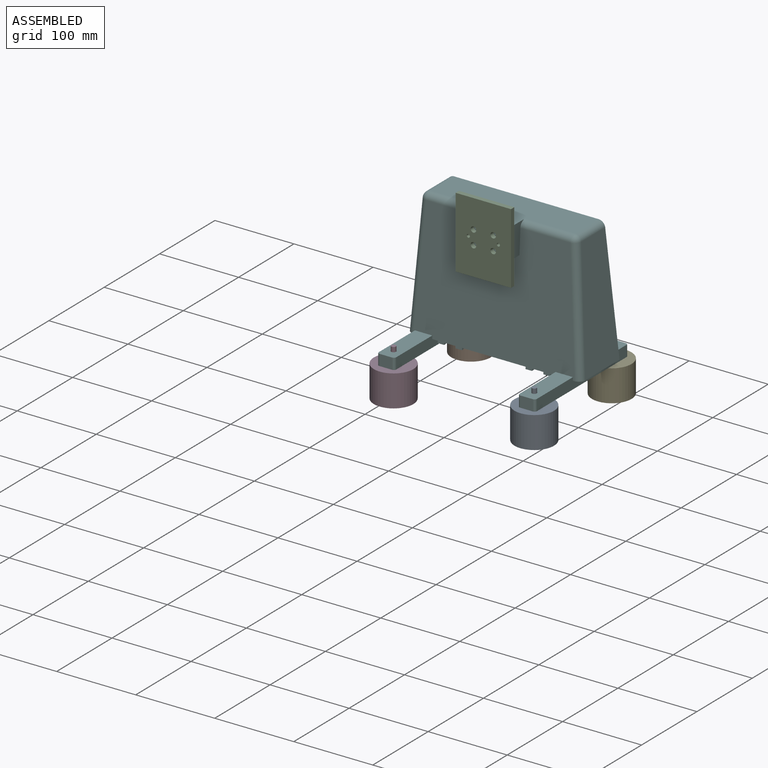
[diagram: assembled view]
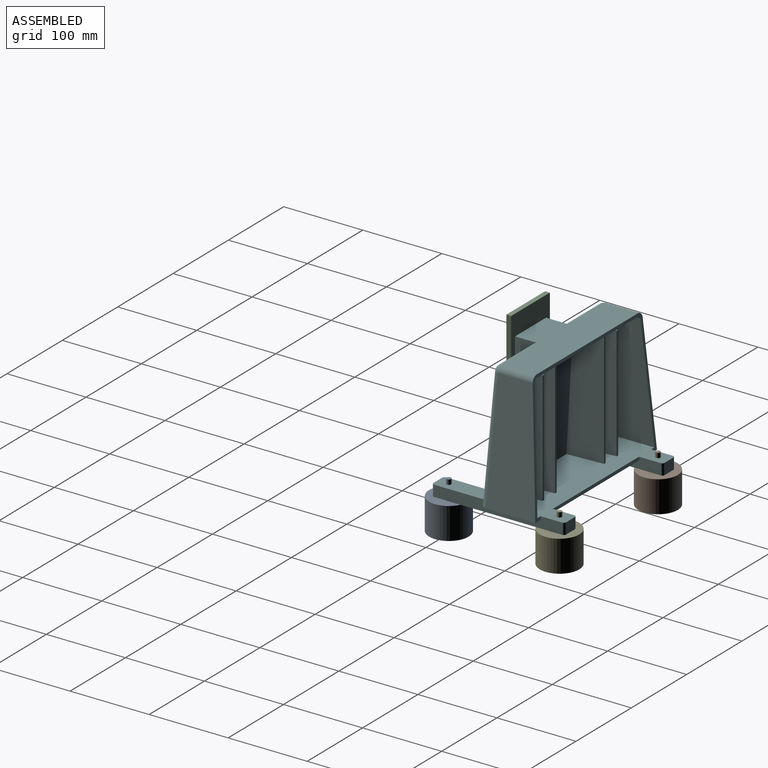
[diagram: assembled view, second angle]
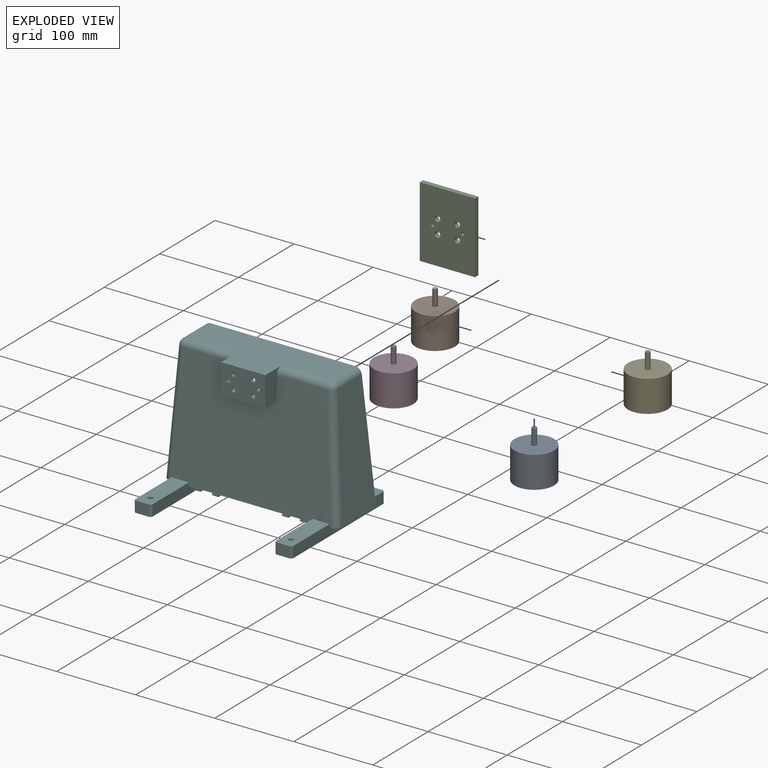
[diagram: exploded view]
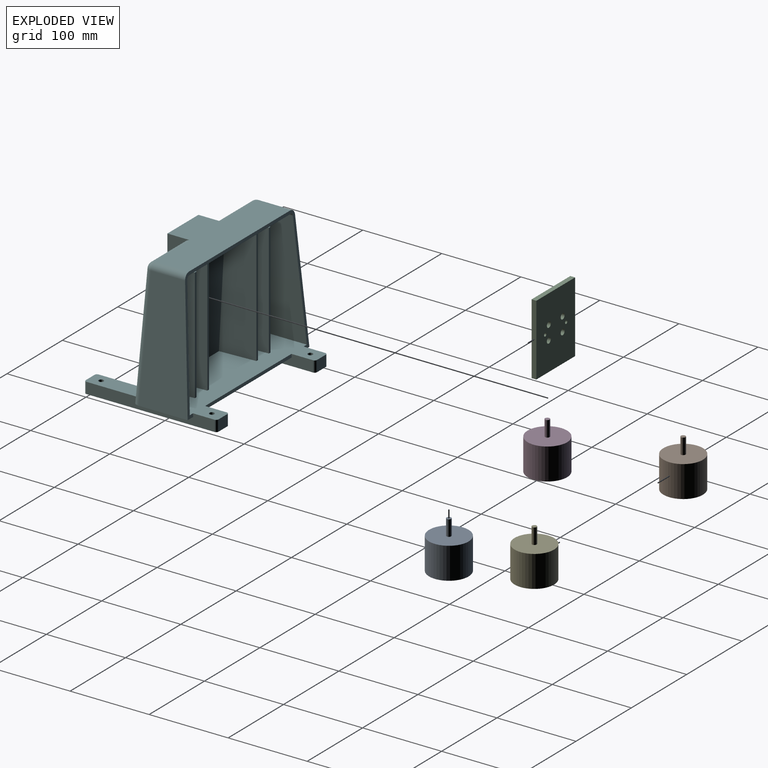
[diagram: exploded view, second angle]
ASSEMBLY  parts=6 mates=5
PART A: 7 faces, bbox 50x50x60 mm
  f0: plane 50x50mm, normal (0,0,1), area 1929.3mm2, adj f1,f6
  f1: cylinder r=25mm len=50mm, axis (0,0,-1), area 6283.2mm2, adj f0,f2
  f2: plane 50x50mm, normal (0,0,-1), area 1935.2mm2, adj f1,f3
  f3: cylinder r=3mm len=20mm, axis (0,0,1), area 377mm2, adj f2,f4
  f4: plane 6x6mm, normal (0,0,-1), area 28.3mm2, adj f3
  f5: cone r=0mm half-angle=59deg, axis (0,0,1), area 39.9mm2, adj f6
  f6: cylinder r=3.3mm len=12mm, axis (0,0,1), area 248.8mm2, adj f0,f5
PART B: same geometry as A
PART C: 12 faces, bbox 70x6x90 mm
  f0: plane 90x70mm, normal (0,-1,0), area 6120.9mm2, adj f2,f3,f4,f5,f6,f7,f8,f9
  f1: plane 90x70mm, normal (0,1,0), area 6120.9mm2, adj f2,f3,f4,f5,f6,f7,f8,f9
  f2: plane 70x6mm, normal (0,0,1), area 420mm2, adj f0,f1,f3,f8
  f3: plane 90x6mm, normal (-1,0,0), area 540mm2, adj f0,f1,f2,f4
  f4: plane 70x6mm, normal (0,0,-1), area 420mm2, adj f0,f1,f3,f8
  f5: cylinder r=3.5mm len=7mm, axis (0,1,0), area 131.9mm2, adj f0,f1
  f6: cylinder r=3.5mm len=7mm, axis (0,1,0), area 131.9mm2, adj f0,f1
  f7: cylinder r=3.5mm len=7mm, axis (0,1,0), area 131.9mm2, adj f0,f1
  f8: plane 90x6mm, normal (1,0,0), area 540mm2, adj f0,f1,f2,f4
  f9: cylinder r=3.5mm len=7mm, axis (0,1,0), area 131.9mm2, adj f0,f1
  f10: cylinder r=2mm len=6mm, axis (0,-1,0), area 75.4mm2, adj f0,f1
  f11: cylinder r=2mm len=6mm, axis (0,-1,0), area 75.4mm2, adj f0,f1
PART D: same geometry as A
PART E: same geometry as A
PART F: 113 faces, bbox 220.4x168.4x170.4 mm
  f0: plane 211.61x95.98mm, normal (0,0,1), area 14117.7mm2, adj f2,f6,f7,f13,f17,f32,f33,f36
  f1: plane 156x70mm, normal (0,0,-1), area 9795.9mm2, adj f13,f15,f45,f52,f94,f95,f96,f97
  f2: plane 148.21x81.63mm, normal (0,1,-0.05), area 10794.9mm2, adj f0,f8,f9,f34,f35,f39,f83,f100
  f3: plane 182.7x68.09mm, normal (0,0,-1), area 8750.6mm2, adj f4,f5,f8,f9,f17,f34,f37,f39
  f4: cylinder r=4mm len=43.76mm, axis (-1,0,0), area 265.2mm2, adj f3,f6,f38,f101
  f5: plane 48x29.1mm, normal (0,1,0), area 1239.9mm2, adj f3,f8,f34,f76,f77,f78,f79,f80
  f6: plane 148.21x53.92mm, normal (0,1,-0.05), area 6123.5mm2, adj f0,f4,f36,f101,f103,f104,f105
  f7: plane 148.21x53.92mm, normal (0,1,-0.05), area 6123.5mm2, adj f0,f40,f43,f82,f90,f91,f92
  f8: plane 30x24.98mm, normal (-1,0,0), area 159.1mm2, adj f2,f3,f5,f9,f35,f86,f87
  f9: cylinder r=4mm len=17.02mm, axis (-1,0,0), area 102.8mm2, adj f2,f3,f8,f83
  f10: plane 56x38mm, normal (0,-1,0), area 2017.9mm2, adj f19,f21,f22,f23,f76,f77,f78,f79
  f11: plane 168x22mm, normal (0,0,-1), area 1792.3mm2, adj f45,f46,f47,f48,f60,f61,f62,f63
  f12: plane 168x22mm, normal (0,0,-1), area 1792.3mm2, adj f50,f51,f52,f53,f54,f55,f56,f57
  f13: plane 156x4mm, normal (0,1,0.07), area 625.5mm2, adj f0,f1,f45,f52
  f14: plane 70.4x10.4mm, normal (0,0,-1), area 686.3mm2, adj f15,f17,f18,f24,f48
  f15: plane 204.02x155.05mm, normal (0,-1,0.05), area 27717.1mm2, adj f1,f14,f20,f21,f22,f23,f24,f27
  f16: plane 152.56x62.02mm, normal (1,0,0.07), area 8057.4mm2, adj f17,f20,f29,f31
  f17: plane 220.22x160.22mm, normal (0,1,0.07), area 2077mm2, adj f0,f3,f14,f16,f18,f19,f20,f25
  f18: plane 152.56x62.02mm, normal (-1,0,0.07), area 8057.4mm2, adj f14,f17,f24,f25
  f19: plane 182.7x71.81mm, normal (0,0,1), area 9448.8mm2, adj f10,f17,f21,f23,f25,f27,f28,f29
  f20: plane 70.4x10.4mm, normal (0,0,-1), area 686.3mm2, adj f15,f16,f17,f31,f51
  f21: plane 38x28.98mm, normal (-1,0,0), area 786.9mm2, adj f10,f15,f19,f22,f27
  f22: plane 56x19.39mm, normal (0,0,-1), area 1086mm2, adj f10,f15,f21,f23
  f23: plane 38x28.98mm, normal (1,0,0), area 786.9mm2, adj f10,f15,f19,f22,f28
  f24: cylinder r=8mm len=152.84mm, axis (-0.07,-0.05,-1), area 1919.1mm2, adj f14,f15,f18,f26
  f25: cylinder r=8mm len=43.36mm, axis (0,-1,0), area 517.5mm2, adj f17,f18,f19,f26
  f26: sphere r=8mm, area 94.4mm2, adj f24,f25,f27
  f27: cylinder r=8mm len=63.35mm, axis (-1,0,0), area 769.6mm2, adj f15,f19,f21,f26
  f28: cylinder r=8mm len=63.35mm, axis (-1,0,0), area 769.6mm2, adj f15,f19,f23,f30
  f29: cylinder r=8mm len=43.36mm, axis (0,-1,0), area 517.5mm2, adj f16,f17,f19,f30
  f30: sphere r=8mm, area 94.4mm2, adj f28,f29,f31
  f31: cylinder r=8mm len=152.84mm, axis (0.07,-0.05,-1), area 1919.1mm2, adj f15,f16,f20,f30
  f32: plane 148.28x61.51mm, normal (-1,0,-0.07), area 7795.4mm2, adj f0,f17,f41,f43
  f33: plane 148.28x61.51mm, normal (1,0,-0.07), area 7795.4mm2, adj f0,f17,f36,f37
  f34: plane 30x24.98mm, normal (1,0,0), area 159.1mm2, adj f2,f3,f5,f35,f39,f85,f89
  f35: plane 48x2.51mm, normal (0,0,1), area 120.5mm2, adj f2,f8,f34,f88
  f36: cylinder r=4mm len=148.42mm, axis (-0.07,-0.05,-1), area 932.9mm2, adj f0,f6,f33,f38
  f37: cylinder r=4mm len=43.37mm, axis (0,-1,0), area 259.6mm2, adj f3,f17,f33,f38
  f38: sphere r=4mm, area 23.6mm2, adj f4,f36,f37
  f39: cylinder r=4mm len=17.02mm, axis (-1,0,0), area 102.8mm2, adj f2,f3,f34,f100
  f40: cylinder r=4mm len=43.76mm, axis (-1,0,0), area 265.2mm2, adj f3,f7,f42,f82
  f41: cylinder r=4mm len=43.37mm, axis (0,-1,0), area 259.6mm2, adj f3,f17,f32,f42
  f42: sphere r=4mm, area 23.6mm2, adj f40,f41,f43
  f43: cylinder r=4mm len=148.42mm, axis (0.07,-0.05,-1), area 932.9mm2, adj f0,f7,f32,f42
  f44: plane 68.21x22mm, normal (0,0,1), area 1466.6mm2, adj f15,f45,f47,f48,f64,f74,f75
  f45: plane 162x14mm, normal (1,0,0), area 1989mm2, adj f0,f1,f11,f13,f15,f44,f72,f74
  f46: plane 16x14mm, normal (0,1,0), area 224mm2, adj f0,f11,f72,f73
  f47: plane 16x14mm, normal (0,-1,0), area 224mm2, adj f11,f44,f74,f75
  f48: plane 162x14mm, normal (-1,0,0), area 1989mm2, adj f0,f11,f14,f15,f17,f44,f73,f75
  f49: plane 68.21x22mm, normal (0,0,1), area 1466.6mm2, adj f15,f50,f51,f52,f67,f68,f69
  f50: plane 16x14mm, normal (0,-1,0), area 224mm2, adj f12,f49,f68,f69
  f51: plane 162x14mm, normal (1,0,0), area 1989mm2, adj f0,f12,f15,f17,f20,f49,f68,f71
  f52: plane 162x14mm, normal (-1,0,0), area 1989mm2, adj f0,f1,f12,f13,f15,f49,f69,f70
  f53: plane 16x14mm, normal (0,1,0), area 224mm2, adj f0,f12,f70,f71
  f54: plane 12x9mm, normal (0,-1,0), area 108mm2, adj f12,f55,f56,f58
  f55: plane 158x9mm, normal (1,0,0), area 1422mm2, adj f12,f54,f57,f58
  f56: plane 158x9mm, normal (-1,0,0), area 1422mm2, adj f12,f54,f57,f58
  f57: plane 12x9mm, normal (0,1,0), area 108mm2, adj f12,f55,f56,f58
  f58: plane 158x12mm, normal (0,0,-1), area 1835.6mm2, adj f54,f55,f56,f57,f66,f67
  f59: plane 158x12mm, normal (0,0,-1), area 1835.6mm2, adj f60,f61,f62,f63,f64,f65
  f60: plane 158x9mm, normal (-1,0,0), area 1422mm2, adj f11,f59,f61,f62
  f61: plane 12x9mm, normal (0,-1,0), area 108mm2, adj f11,f59,f60,f63
  f62: plane 12x9mm, normal (0,1,0), area 108mm2, adj f11,f59,f60,f63
  f63: plane 158x9mm, normal (1,0,0), area 1422mm2, adj f11,f59,f61,f62
  f64: cylinder r=3.1mm len=6.2mm, axis (0,0,1), area 97.4mm2, adj f44,f59
  f65: cylinder r=3.1mm len=6.2mm, axis (0,0,1), area 97.4mm2, adj f0,f59
  f66: cylinder r=3.1mm len=6.2mm, axis (0,0,1), area 97.4mm2, adj f0,f58
  f67: cylinder r=3.1mm len=6.2mm, axis (0,0,1), area 97.4mm2, adj f49,f58
  f68: cylinder r=3mm len=14mm, axis (0,0,1), area 66mm2, adj f12,f49,f50,f51
  f69: cylinder r=3mm len=14mm, axis (0,0,-1), area 66mm2, adj f12,f49,f50,f52
  f70: cylinder r=3mm len=14mm, axis (0,0,1), area 66mm2, adj f0,f12,f52,f53
  f71: cylinder r=3mm len=14mm, axis (0,0,-1), area 66mm2, adj f0,f12,f51,f53
  f72: cylinder r=3mm len=14mm, axis (0,0,1), area 66mm2, adj f0,f11,f45,f46
  f73: cylinder r=3mm len=14mm, axis (0,0,-1), area 66mm2, adj f0,f11,f46,f48
  f74: cylinder r=3mm len=14mm, axis (0,0,-1), area 66mm2, adj f11,f44,f45,f47
  f75: cylinder r=3mm len=14mm, axis (0,0,1), area 66mm2, adj f11,f44,f47,f48
  f76: cylinder r=2.6mm len=5.2mm, axis (0,-1,0), area 65.3mm2, adj f5,f10
  f77: cylinder r=2mm len=4mm, axis (0,-1,0), area 50.3mm2, adj f5,f10
  f78: cylinder r=2.6mm len=5.2mm, axis (0,-1,0), area 65.3mm2, adj f5,f10
  f79: cylinder r=2.6mm len=5.2mm, axis (0,-1,0), area 65.3mm2, adj f5,f10
  f80: cylinder r=2.6mm len=5.2mm, axis (0,-1,0), area 65.3mm2, adj f5,f10
  f81: cylinder r=2mm len=4mm, axis (0,-1,0), area 50.3mm2, adj f5,f10
  f82: plane 152.08x45.87mm, normal (1,0.05,0), area 6359.6mm2, adj f0,f3,f7,f40,f84
  f83: plane 152.08x45.87mm, normal (-1,0.05,0), area 6359.6mm2, adj f0,f2,f3,f9,f84
  f84: plane 152x3mm, normal (0,1,0), area 456mm2, adj f0,f3,f82,f83
  f85: plane 17.1x0.9mm, normal (0,0.05,1), area 7.7mm2, adj f5,f34,f89
  f86: plane 27.11x17.1mm, normal (-1,0.05,0), area 448.8mm2, adj f5,f8,f87,f88
  f87: plane 17.1x0.9mm, normal (0,0.05,1), area 7.7mm2, adj f5,f8,f86
  f88: plane 48x17.1mm, normal (0,0.05,1), area 806.5mm2, adj f5,f35,f86,f89
  f89: plane 27.11x17.1mm, normal (1,0.05,0), area 448.8mm2, adj f5,f34,f85,f88
  f90: plane 145.62x45.79mm, normal (1,0.05,0), area 6081.8mm2, adj f0,f7,f92,f93
  f91: plane 145.62x45.79mm, normal (-1,0.05,0), area 6081.8mm2, adj f0,f7,f92,f93
  f92: plane 38.15x7mm, normal (0,0.05,1), area 191mm2, adj f7,f90,f91,f93
  f93: plane 143.62x3mm, normal (0,1,0), area 430.9mm2, adj f0,f90,f91,f92
  f94: plane 50.14x8.26mm, normal (0,0.05,-1), area 282.5mm2, adj f1,f15,f95,f96
  f95: plane 50.14x2.63mm, normal (1,0.05,0), area 65.8mm2, adj f1,f15,f94
  f96: plane 50.14x2.63mm, normal (-1,0.05,0), area 65.8mm2, adj f1,f15,f94
  f97: plane 50.14x2.63mm, normal (-1,0.05,0), area 65.8mm2, adj f1,f15,f99
  f98: plane 50.14x2.63mm, normal (1,0.05,0), area 65.8mm2, adj f1,f15,f99
  f99: plane 50.14x8.26mm, normal (0,0.05,-1), area 282.5mm2, adj f1,f15,f97,f98
  f100: plane 152.08x45.87mm, normal (1,0.05,0), area 6359.6mm2, adj f0,f2,f3,f39,f102
  f101: plane 152.08x45.87mm, normal (-1,0.05,0), area 6359.6mm2, adj f0,f3,f4,f6,f102
  f102: plane 152x3mm, normal (0,1,0), area 456mm2, adj f0,f3,f100,f101
  f103: plane 38.15x7mm, normal (0,0.05,1), area 191mm2, adj f6,f104,f105,f106
  f104: plane 145.62x45.79mm, normal (1,0.05,0), area 6081.8mm2, adj f0,f6,f103,f106
  f105: plane 145.62x45.79mm, normal (-1,0.05,0), area 6081.8mm2, adj f0,f6,f103,f106
  f106: plane 143.62x3mm, normal (0,1,0), area 430.9mm2, adj f0,f103,f104,f105
  f107: plane 50.14x8.26mm, normal (0,0.05,-1), area 282.5mm2, adj f1,f15,f108,f109
  f108: plane 50.14x2.63mm, normal (1,0.05,0), area 65.8mm2, adj f1,f15,f107
  f109: plane 50.14x2.63mm, normal (-1,0.05,0), area 65.8mm2, adj f1,f15,f107
  f110: plane 50.14x2.63mm, normal (-1,0.05,0), area 65.8mm2, adj f1,f15,f112
  f111: plane 50.14x2.63mm, normal (1,0.05,0), area 65.8mm2, adj f1,f15,f112
  f112: plane 50.14x8.26mm, normal (0,0.05,-1), area 282.5mm2, adj f1,f15,f110,f111
PLACE A rot(axis=(-1,0,0),180deg) t=(142.81,59.13,-29.35)mm
PLACE B rot(axis=(-1,0,0),180deg) t=(-35.19,199.13,-29.35)mm
PLACE C rot(axis=(1,0,0),0deg) t=(53.81,100.13,121.65)mm
PLACE D rot(axis=(-1,0,0),180deg) t=(-35.19,59.13,-29.35)mm
PLACE E rot(axis=(-1,0,0),180deg) t=(142.81,199.13,-29.35)mm
PLACE F rot(axis=(1,0,0),0deg) t=(53.81,113.13,-19.35)mm fixed
MATE cylindrical F.f67 <-> A.f1  axis (0,0,1) through (142.81,59.13,-15.35)mm
MATE planar F.f11 <-> D.f1  axis (0,0,-1) through (-35.19,129.13,-29.35)mm
MATE planar A.f1 <-> F.f12  axis (0,0,1) through (142.81,59.13,-29.35)mm
MATE fastened F.f79 <-> C.f9  axis (0,-1,0) through (66.31,100.13,130.65)mm
MATE cylindrical D.f1 <-> F.f64  axis (0,0,1) through (-35.19,59.13,-29.35)mm
